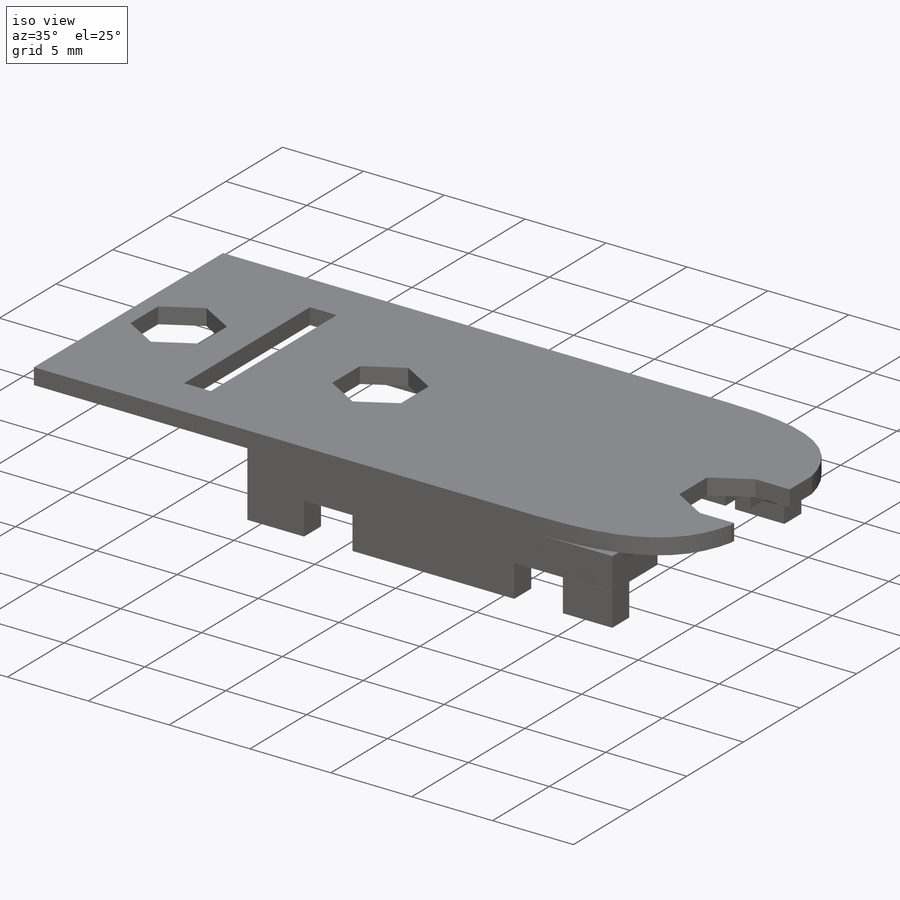
[diagram: iso view]
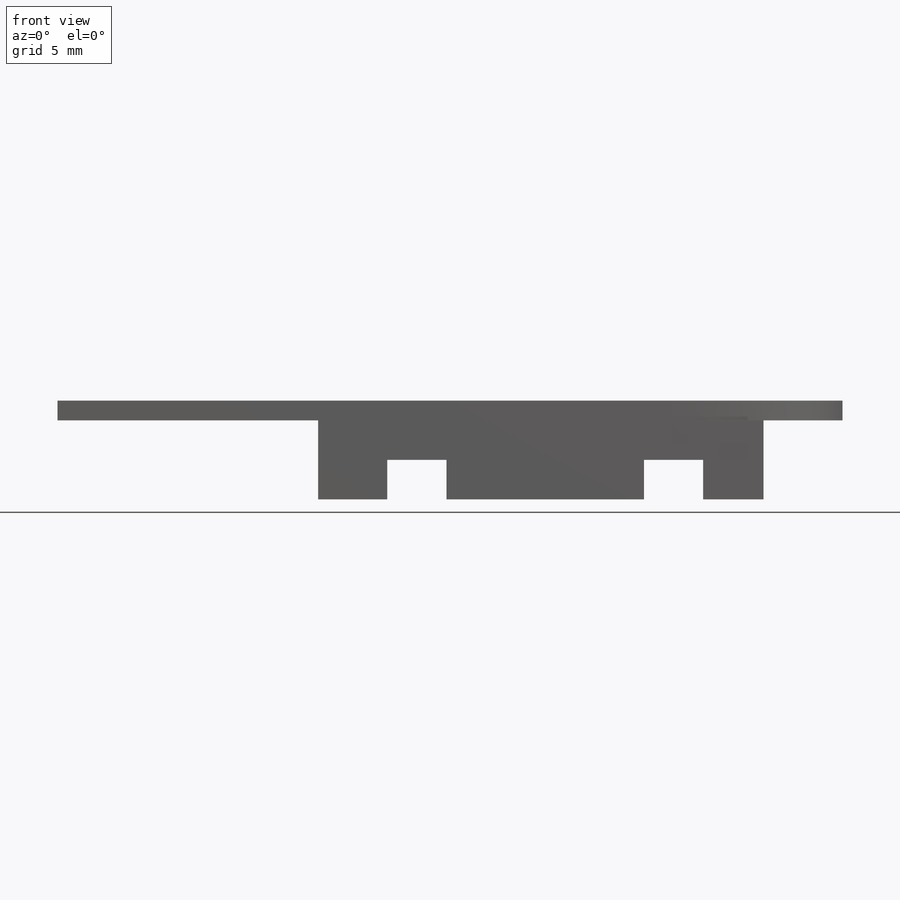
[diagram: front view]
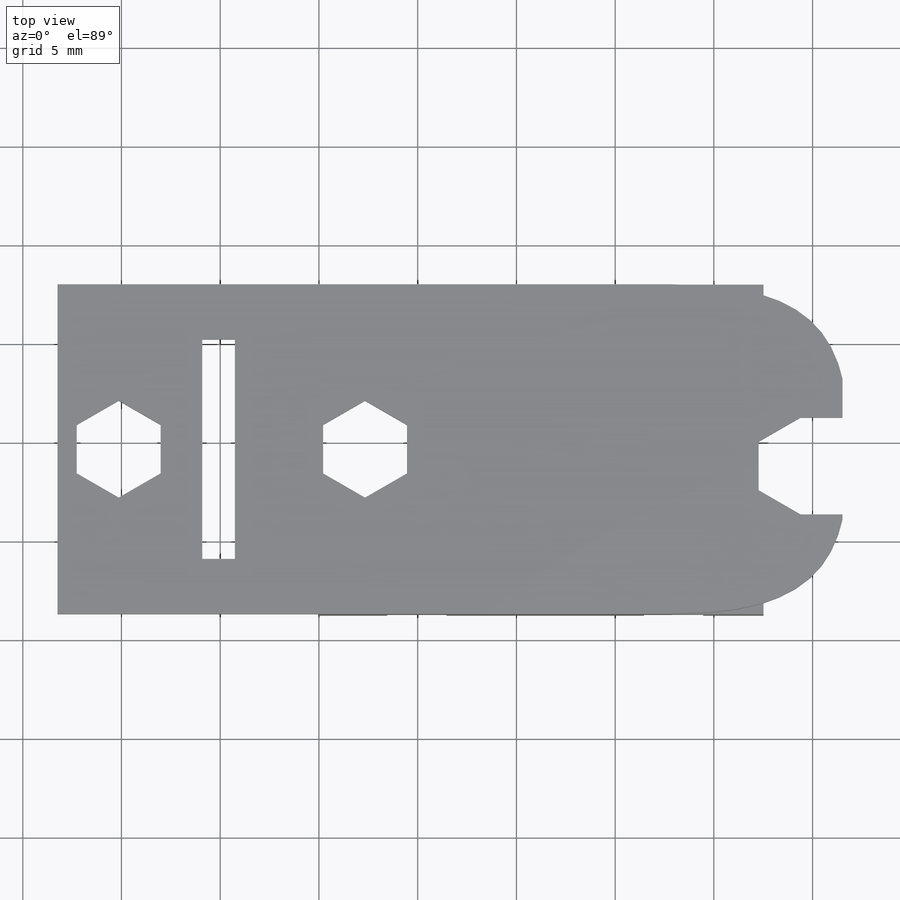
[diagram: top view]
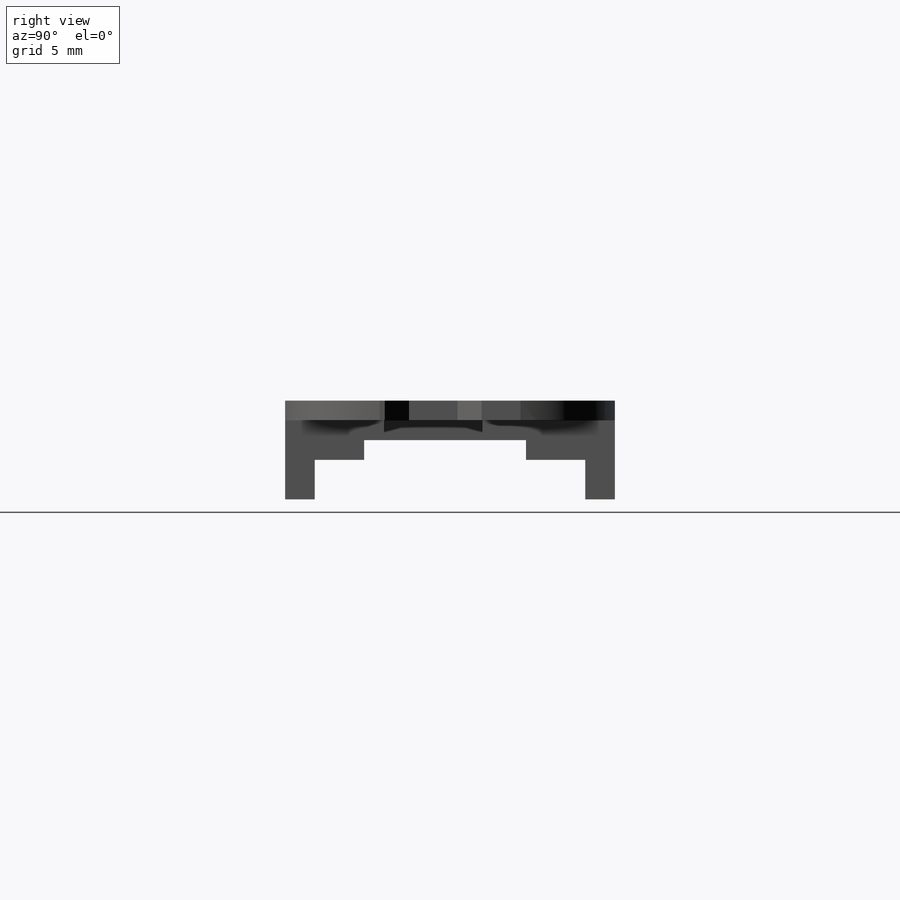
[diagram: right view]
SOLIDWORKS PART (.sldprt)
format: sldprt  version: not decoded by parser v0  size: 540,672 bytes
history: native  units: mm
features: sketch x16, cut_extrude x10, extrude x5, material x1, plane x1, mirror x1 (+12 scaffold rows collapsed)
feature tree (46):
  scaffold x12  (default folders/planes/origin — collapsed)
  material  "Material <not specified>"
  sketch  "Sketch1"  dims[D1=22.5552mm D2=12.7mm]
  extrude  "Boss-Extrude1"  Depth=1mm
  sketch  "Sketch2"  dims[D1=7.3mm D2=5.0mm D3=2.7mm D4=0.0mm D5=2.75mm]
  cut_extrude  "Cut-Extrude1"  Depth=1mm
  sketch  "Sketch3"  dims[D1=5.0mm D2=3.0mm D3=4.7mm D4=5.0mm]
  cut_extrude  "Cut-Extrude2"  Depth=1mm
  sketch  "Sketch4"  dims[D1=0.5mm D2=0.5mm D3=2.0mm D4=0.5mm D5=2.5mm]
  extrude  "Boss-Extrude2"  Depth=1mm
  sketch  "Sketch5"  dims[D1=13.2mm D2=2.0mm D3=2.0mm D4=4.0mm D5=26.5552mm]
  extrude  "Boss-Extrude3"  Depth=1mm
  sketch  "Sketch6"  dims[c1.D1=~2.047781mm c2.D1=240.0deg c3.D1=4.25mm c3.D2=6.84mm c3.D3=8.35mm c3.D4=24.5552mm c4.D2=0.5mm c4.D1=~90.390268deg]
  cut_extrude  "Cut-Extrude3"  Depth=1mm
  sketch  "Sketch7"  dims[c1.D1=4.25mm c1.D2=0.0mm c2.D1=~131.722766deg]
  cut_extrude  "Cut-Extrude4"  Depth=1mm
  sketch  "Sketch8"
  cut_extrude  "Cut-Extrude5"  [1 undecoded]
  sketch  "Sketch9"  dims[D1=8.35mm D2=8.35mm]
  plane  "Plane1"  Offset=14.61mm
  mirror  "Mirror2"
  sketch  "Sketch10"  dims[D1=0.0mm D2=0.0mm]
  extrude  "Boss-Extrude4"  Depth=2mm
  sketch  "Sketch11"
  cut_extrude  "Cut-Extrude6"  Depth=3mm
  sketch  "Sketch12"  dims[D1=1.5mm D2=1.5mm D3=22.5552mm]
  extrude  "Boss-Extrude5"  Depth=2mm
  sketch  "Sketch13"  dims[D1=3.0mm D2=3.5mm D3=0.0mm D4=3.0mm D6=3.0552mm D5=2.0]
  cut_extrude  "Cut-Extrude7"  Depth=2mm
  sketch  "Sketch14"
  cut_extrude  "Cut-Extrude8"  Depth=1mm
  sketch  "Sketch15"  dims[D1=11.12mm D2=1.65mm D3=2.79mm D4=2.79mm D5=4.22mm D6=7.33mm]
  cut_extrude  "adapter_PCB_hole"  Depth=1mm
  sketch  "Sketch22"  dims[c1.D1=~0.256782mm c1.D2=~3.993218mm c2.D1=3.1mm c3.D1=~32.31516deg]
  cut_extrude  "Cut-Extrude10"  Depth=1mm
decode coverage: 27 of 32 modeling features carry decoded parameters
note: ~ marks probable driven/reference dimensions
note: 1 parameter value undecoded
note: suppression state not decoded; provenance and decode notes live in map.json
